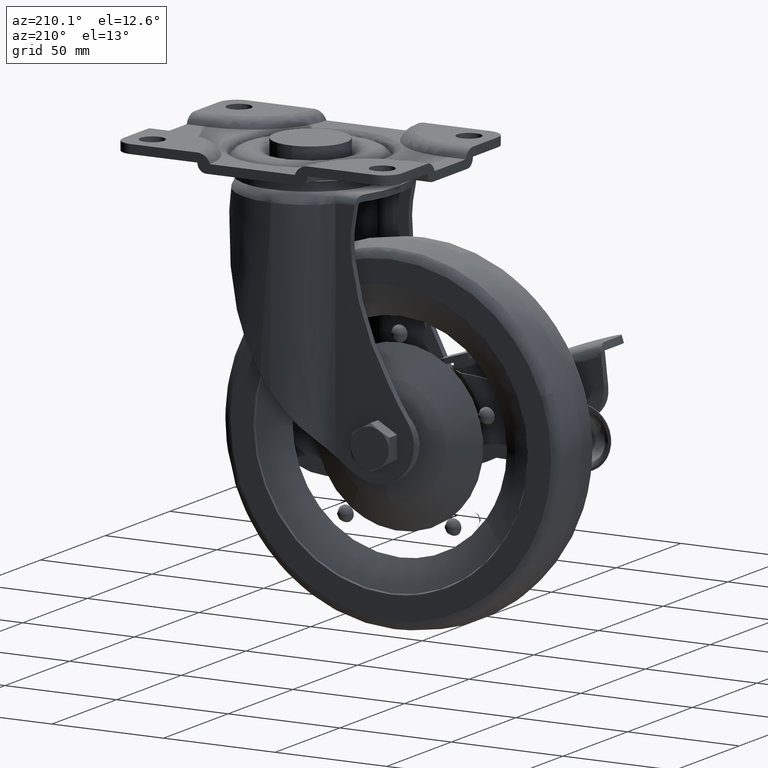
[diagram: clean part render]
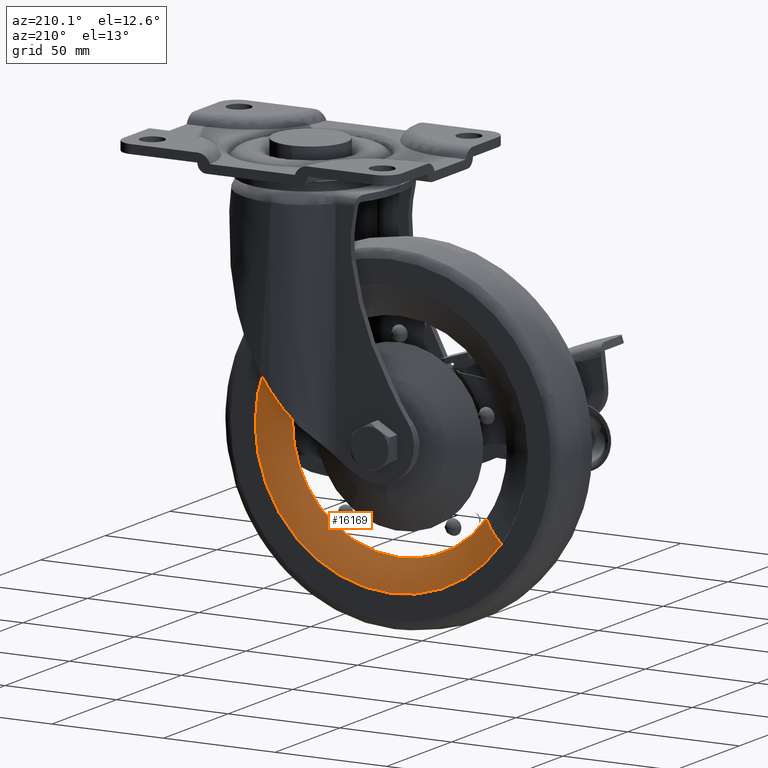
[diagram: same view with one face highlighted and labeled with its STEP entity id]
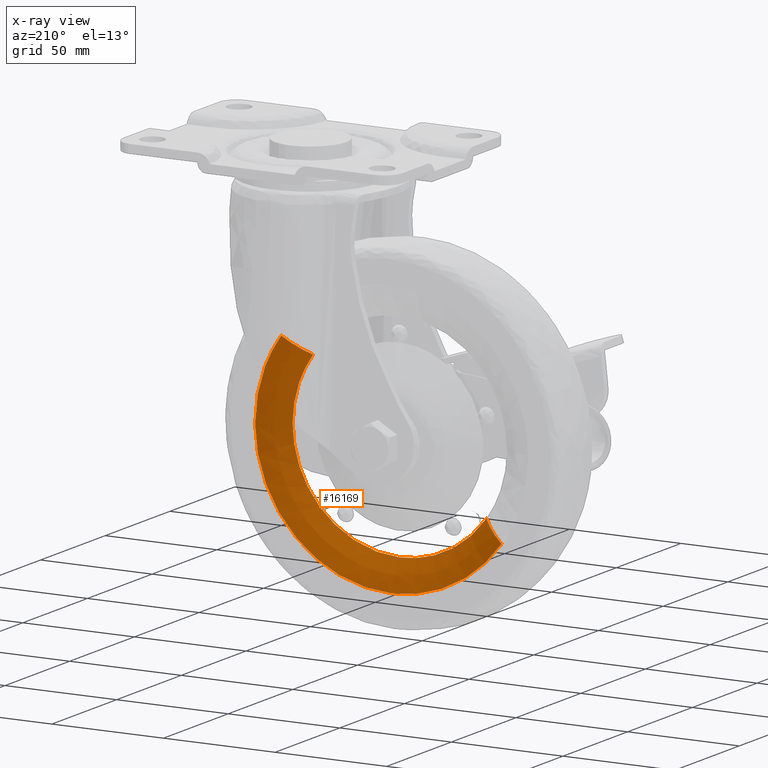
[diagram: x-ray of the same camera — body ghosted, the highlighted face saturated]
A machine part, auxiliary view. The second image highlights one B-rep face of the part: STEP entity #16169.
The next image is the same camera in x-ray: the body ghosted, the highlighted face saturated — about 0% of this face is hidden behind the body in this view.
In plain terms, the highlighted face is a freeform B-spline surface patch.
Its self-contained STEP definition (entity closure, byte-faithful):
#15981=CARTESIAN_POINT('',(-82.832815730159780,7.000000000225730,-140.713692110250010));
#15982=VERTEX_POINT('',#15981);
#15983=CARTESIAN_POINT('',(-44.0,6.999999999999959,-160.500000000000000));
#15984=VERTEX_POINT('',#15983);
#15985=CARTESIAN_POINT('',(-82.832815730159780,7.000000000225731,-140.713692110249980));
#15986=CARTESIAN_POINT('',(-68.457221575788367,7.000000000112844,-160.500000000075030));
#15987=CARTESIAN_POINT('',(-44.0,6.999999999999959,-160.500000000000000));
#15995=(BOUNDED_CURVE()B_SPLINE_CURVE(2,(#15985,#15986,#15987),.UNSPECIFIED.,.F.,.U.)B_SPLINE_CURVE_WITH_KNOTS((3,3),(0.851249659000501,1.0),.UNSPECIFIED.)CURVE()GEOMETRIC_REPRESENTATION_ITEM()RATIONAL_B_SPLINE_CURVE((0.858840265006137,0.825728135300232,1.0))REPRESENTATION_ITEM(''));
#15996=EDGE_CURVE('',#15982,#15984,#15995,.T.);
#16015=CARTESIAN_POINT('',(-5.167184269840220,7.000000000225727,-84.286307889749992));
#16016=VERTEX_POINT('',#16015);
#16030=CARTESIAN_POINT('',(-44.0,6.999999999999959,-160.500000000000000));
#16031=CARTESIAN_POINT('',(4.000000000052665,7.000000000057476,-160.499999999961690));
#16032=CARTESIAN_POINT('',(4.000000000156021,7.000000000170361,-112.499999999886700));
#16033=CARTESIAN_POINT('',(4.000000000189607,7.000000000207038,-96.903854580640996));
#16034=CARTESIAN_POINT('',(-5.167184269840213,7.000000000225727,-84.286307889749992));
#16042=(BOUNDED_CURVE()B_SPLINE_CURVE(2,(#16030,#16031,#16032,#16033,#16034),.UNSPECIFIED.,.F.,.U.)B_SPLINE_CURVE_WITH_KNOTS((3,2,3),(0.0,0.250000000000000,0.351249659000501),.UNSPECIFIED.)CURVE()GEOMETRIC_REPRESENTATION_ITEM()RATIONAL_B_SPLINE_CURVE((1.0,0.707106781186548,1.0,0.881378645886315,0.858840265006137))REPRESENTATION_ITEM(''));
#16043=EDGE_CURVE('',#15984,#16016,#16042,.T.);
#16067=CARTESIAN_POINT('',(-82.398384150875671,6.513122754320327,-140.398059092298150));
#16068=CARTESIAN_POINT('',(-54.500325058577488,6.513122754320329,-178.796443243173910));
#16069=CARTESIAN_POINT('',(-16.101940907701813,6.513122754320327,-150.898384150875700));
#16070=CARTESIAN_POINT('',(22.296443243173865,6.513122754320329,-123.000325058577490));
#16071=CARTESIAN_POINT('',(-5.601615849124315,6.513122754320327,-84.601940907701803));
#16072=CARTESIAN_POINT('',(-87.315601948613306,12.167641205399967,-143.970626941819400));
#16073=CARTESIAN_POINT('',(-55.844975006793867,12.167641205399972,-187.286228890432680));
#16074=CARTESIAN_POINT('',(-12.529373058180562,12.167641205399967,-155.815601948613360));
#16075=CARTESIAN_POINT('',(30.786228890432735,12.167641205399972,-124.344975006793890));
#16076=CARTESIAN_POINT('',(-0.684398051386687,12.167641205399967,-81.029373058180568));
#16077=CARTESIAN_POINT('',(-93.925602949359700,13.637417368431995,-148.773073779019680));
#16078=CARTESIAN_POINT('',(-57.652529170340010,13.637417368431999,-198.698676728379350));
#16079=CARTESIAN_POINT('',(-7.726926220980303,13.637417368431995,-162.425602949359730));
#16080=CARTESIAN_POINT('',(42.198676728379397,13.637417368431999,-126.152529170340000));
#16081=CARTESIAN_POINT('',(5.925602949359714,13.637417368431995,-76.226926220980289));
#16089=(BOUNDED_SURFACE()B_SPLINE_SURFACE(2,2,((#16067,#16072,#16077),(#16068,#16073,#16078),(#16069,#16074,#16079),(#16070,#16075,#16080),(#16071,#16076,#16081)),.UNSPECIFIED.,.F.,.F.,.U.)B_SPLINE_SURFACE_WITH_KNOTS((3,2,3),(3,3),(0.0,102.246860053941900,204.493720107883800),(0.0,16.259729571823652),.UNSPECIFIED.)GEOMETRIC_REPRESENTATION_ITEM()RATIONAL_B_SPLINE_SURFACE(((0.943278876737079,0.905221498546605,0.943632601601461),(0.666998890290818,0.640088260098153,0.667249011541097),(0.943278876737079,0.905221498546605,0.943632601601461),(0.666998890290818,0.640088260098153,0.667249011541097),(0.943278876737079,0.905221498546605,0.943632601601461)))REPRESENTATION_ITEM('')SURFACE());
#16090=CARTESIAN_POINT('',(-93.350036656308120,13.500000000710100,-148.354900389635900));
#16091=VERTEX_POINT('',#16090);
#16092=CARTESIAN_POINT('',(-44.0,13.499999999999950,-173.500000000000000));
#16093=VERTEX_POINT('',#16092);
#16094=CARTESIAN_POINT('',(-93.350036656308120,13.500000000710104,-148.354900389635930));
#16095=CARTESIAN_POINT('',(-75.081052418822736,13.500000000214806,-173.499999999830550));
#16096=CARTESIAN_POINT('',(-44.0,13.499999999999950,-173.500000000000000));
#16104=(BOUNDED_CURVE()B_SPLINE_CURVE(2,(#16094,#16095,#16096),.UNSPECIFIED.,.F.,.U.)B_SPLINE_CURVE_WITH_KNOTS((3,3),(0.851249659000674,1.0),.UNSPECIFIED.)CURVE()GEOMETRIC_REPRESENTATION_ITEM()RATIONAL_B_SPLINE_CURVE((0.858840265006060,0.825728135300435,1.0))REPRESENTATION_ITEM(''));
#16105=EDGE_CURVE('',#16091,#16093,#16104,.T.);
#16106=ORIENTED_EDGE('',*,*,#16105,.F.);
#16107=CARTESIAN_POINT('',(-82.832815730159780,7.000000000225730,-140.713692110250040));
#16108=CARTESIAN_POINT('',(-87.391902955441225,11.979316547966910,-144.026062868358480));
#16109=CARTESIAN_POINT('',(-93.350036656308120,13.500000000710097,-148.354900389635840));
#16117=(BOUNDED_CURVE()B_SPLINE_CURVE(2,(#16107,#16108,#16109),.UNSPECIFIED.,.F.,.U.)B_SPLINE_CURVE_WITH_KNOTS((3,3),(-1.454678585784555,-0.540671111986542),.UNSPECIFIED.)CURVE()GEOMETRIC_REPRESENTATION_ITEM()RATIONAL_B_SPLINE_CURVE((0.939979969644451,0.908536471200670,0.940301563349255))REPRESENTATION_ITEM(''));
#16118=EDGE_CURVE('',#15982,#16091,#16117,.T.);
#16119=ORIENTED_EDGE('',*,*,#16118,.F.);
#16120=ORIENTED_EDGE('',*,*,#15996,.T.);
#16121=ORIENTED_EDGE('',*,*,#16043,.T.);
#16122=CARTESIAN_POINT('',(5.350036656308106,13.500000000710109,-76.645099610364156));
#16123=VERTEX_POINT('',#16122);
#16124=CARTESIAN_POINT('',(-5.167184269840220,7.000000000225727,-84.286307889749992));
#16125=CARTESIAN_POINT('',(-0.608097044558775,11.979316547966906,-80.973937131641478));
#16126=CARTESIAN_POINT('',(5.350036656308106,13.500000000710111,-76.645099610364156));
#16134=(BOUNDED_CURVE()B_SPLINE_CURVE(2,(#16124,#16125,#16126),.UNSPECIFIED.,.F.,.U.)B_SPLINE_CURVE_WITH_KNOTS((3,3),(-1.454678585784556,-0.540671111986545),.UNSPECIFIED.)CURVE()GEOMETRIC_REPRESENTATION_ITEM()RATIONAL_B_SPLINE_CURVE((0.939979969644451,0.908536471200670,0.940301563349255))REPRESENTATION_ITEM(''));
#16135=EDGE_CURVE('',#16016,#16123,#16134,.T.);
#16136=ORIENTED_EDGE('',*,*,#16135,.T.);
#16137=CARTESIAN_POINT('',(16.995183696431649,13.500000002738551,-113.266528432974100));
#16138=VERTEX_POINT('',#16137);
#16139=CARTESIAN_POINT('',(16.995183696431649,13.500000002738551,-113.266528432974080));
#16140=CARTESIAN_POINT('',(16.999999999995577,13.500000002721077,-112.883279347553280));
#16141=CARTESIAN_POINT('',(16.999999999991140,13.500000002703461,-112.500000000006390));
#16142=CARTESIAN_POINT('',(16.999999999761897,13.500000001792472,-92.679898529874251));
#16143=CARTESIAN_POINT('',(5.350036656308106,13.500000000710104,-76.645099610364156));
#16151=(BOUNDED_CURVE()B_SPLINE_CURVE(2,(#16139,#16140,#16141,#16142,#16143),.UNSPECIFIED.,.F.,.U.)B_SPLINE_CURVE_WITH_KNOTS((3,2,3),(0.247784295921470,0.250000000000000,0.351249659000674),.UNSPECIFIED.)CURVE()GEOMETRIC_REPRESENTATION_ITEM()RATIONAL_B_SPLINE_CURVE((0.994854295643418,0.997404141202005,1.0,0.881378645886113,0.858840265006060))REPRESENTATION_ITEM(''));
#16152=EDGE_CURVE('',#16138,#16123,#16151,.T.);
#16153=ORIENTED_EDGE('',*,*,#16152,.F.);
#16154=CARTESIAN_POINT('',(-44.0,13.499999999999950,-173.500000000000000));
#16155=CARTESIAN_POINT('',(16.238227724257701,13.500000001369250,-173.499999999999970));
#16156=CARTESIAN_POINT('',(16.995183696431649,13.500000002738551,-113.266528432974080));
#16164=(BOUNDED_CURVE()B_SPLINE_CURVE(2,(#16154,#16155,#16156),.UNSPECIFIED.,.F.,.U.)B_SPLINE_CURVE_WITH_KNOTS((3,3),(0.0,0.247784295921470),.UNSPECIFIED.)CURVE()GEOMETRIC_REPRESENTATION_ITEM()RATIONAL_B_SPLINE_CURVE((1.0,0.709702639984543,0.994854295643418))REPRESENTATION_ITEM(''));
#16165=EDGE_CURVE('',#16093,#16138,#16164,.T.);
#16166=ORIENTED_EDGE('',*,*,#16165,.F.);
#16167=EDGE_LOOP('',(#16106,#16119,#16120,#16121,#16136,#16153,#16166));
#16168=FACE_OUTER_BOUND('',#16167,.T.);
#16169=ADVANCED_FACE('',(#16168),#16089,.T.);